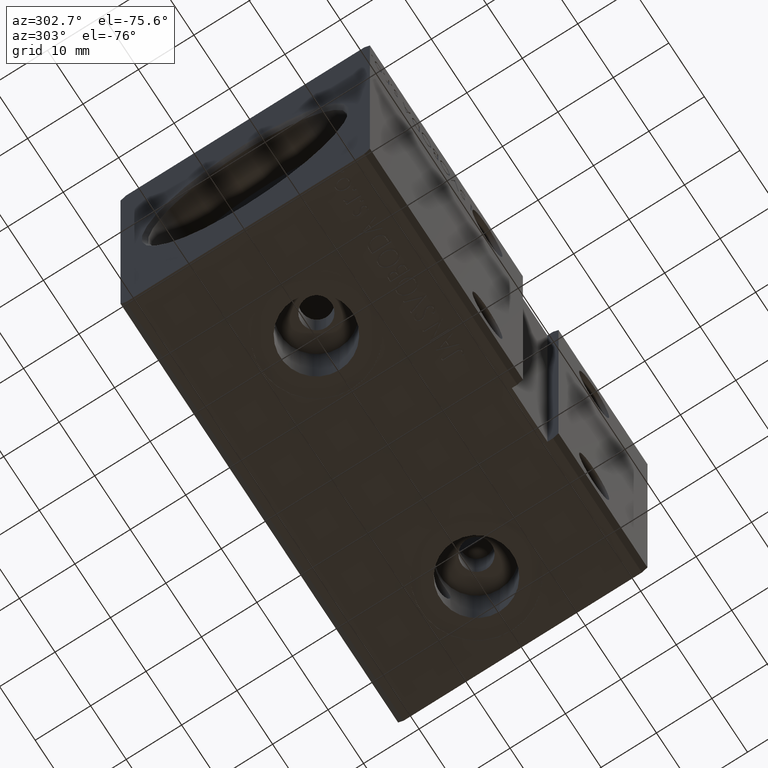
[diagram: clean part render]
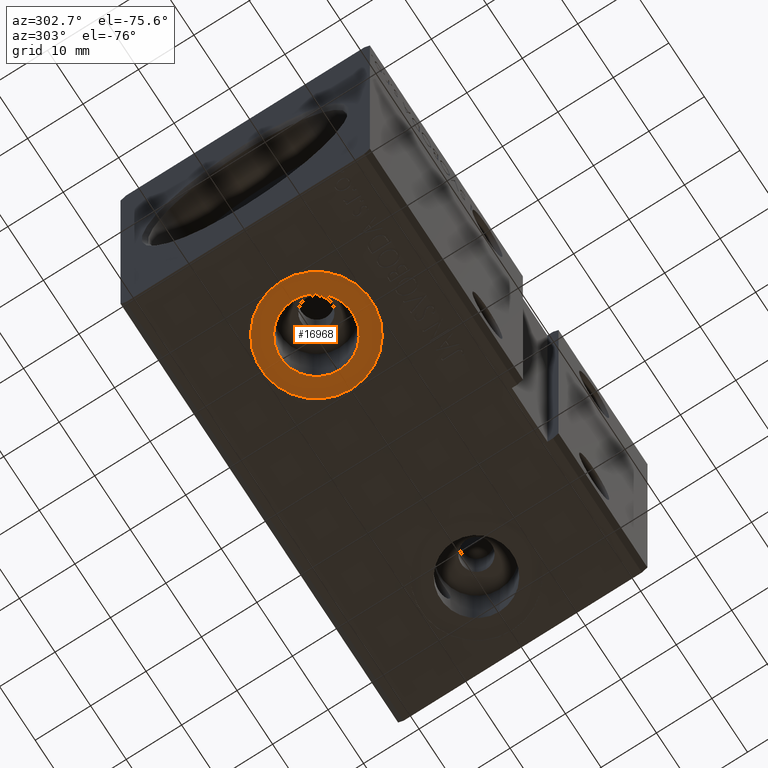
[diagram: same view with one face highlighted and labeled with its STEP entity id]
A machine part, auxiliary view. The second image highlights one B-rep face of the part: STEP entity #16968.
In plain terms, the highlighted planar face has unit normal (0, 0, -1).
Its self-contained STEP definition (entity closure, byte-faithful):
#3122 = FACE_BOUND ( 'NONE', #32667, .T. ) ;
#3220 = EDGE_CURVE ( 'NONE', #39566, #36517, #29716, .T. ) ;
#4224 = DIRECTION ( 'NONE',  ( -1.000000000000000000, 0.000000000000000000, 0.000000000000000000 ) ) ;
#5014 = DIRECTION ( 'NONE',  ( -1.000000000000000000, 0.000000000000000000, -0.000000000000000000 ) ) ;
#8058 = VERTEX_POINT ( 'NONE', #19276 ) ;
#8661 = CARTESIAN_POINT ( 'NONE',  ( 19.99999999999999645, 2.578758962896938545E-15, -32.39999999999999858 ) ) ;
#9212 = CIRCLE ( 'NONE', #33328, 10.00000000000000000 ) ;
#9384 = CARTESIAN_POINT ( 'NONE',  ( 26.49999999999999645, 3.374779382342717797E-15, -32.39999999999999858 ) ) ;
#9430 = CARTESIAN_POINT ( 'NONE',  ( 0.000000000000000000, 0.000000000000000000, -32.39999999999999858 ) ) ;
#10111 = DIRECTION ( 'NONE',  ( -1.000000000000000000, 0.000000000000000000, 0.000000000000000000 ) ) ;
#10787 = AXIS2_PLACEMENT_3D ( 'NONE', #27258, #39501, #14177 ) ;
#10942 = DIRECTION ( 'NONE',  ( 0.000000000000000000, 0.000000000000000000, -1.000000000000000000 ) ) ;
#11521 = DIRECTION ( 'NONE',  ( -1.000000000000000000, 0.000000000000000000, 0.000000000000000000 ) ) ;
#13068 = EDGE_CURVE ( 'NONE', #8058, #15825, #37014, .T. ) ;
#13567 = CARTESIAN_POINT ( 'NONE',  ( 19.99999999999999645, 2.578758962896938545E-15, -32.39999999999999858 ) ) ;
#13998 = CARTESIAN_POINT ( 'NONE',  ( 19.99999999999999645, 2.578758962896938545E-15, -32.39999999999999858 ) ) ;
#14177 = DIRECTION ( 'NONE',  ( -1.000000000000000000, 0.000000000000000000, 0.000000000000000000 ) ) ;
#14542 = AXIS2_PLACEMENT_3D ( 'NONE', #13998, #10942, #4224 ) ;
#15825 = VERTEX_POINT ( 'NONE', #36446 ) ;
#16626 = DIRECTION ( 'NONE',  ( 0.000000000000000000, 0.000000000000000000, -1.000000000000000000 ) ) ;
#16968 = ADVANCED_FACE ( 'NONE', ( #3122, #22095 ), #21890, .T. ) ;
#19276 = CARTESIAN_POINT ( 'NONE',  ( 30.00000000000000000, 3.803405762044291999E-15, -32.39999999999999858 ) ) ;
#19962 = EDGE_LOOP ( 'NONE', ( #29725, #34208 ) ) ;
#20675 = AXIS2_PLACEMENT_3D ( 'NONE', #8661, #39493, #11521 ) ;
#20699 = ORIENTED_EDGE ( 'NONE', *, *, #3220, .F. ) ;
#21890 = PLANE ( 'NONE',  #31196 ) ;
#22095 = FACE_OUTER_BOUND ( 'NONE', #19962, .T. ) ;
#27258 = CARTESIAN_POINT ( 'NONE',  ( 19.99999999999999645, 2.578758962896938545E-15, -32.39999999999999858 ) ) ;
#28882 = CARTESIAN_POINT ( 'NONE',  ( 13.49999999999999822, 2.578758962896938545E-15, -32.39999999999999858 ) ) ;
#29716 = CIRCLE ( 'NONE', #10787, 6.499999999999999112 ) ;
#29725 = ORIENTED_EDGE ( 'NONE', *, *, #32472, .T. ) ;
#31196 = AXIS2_PLACEMENT_3D ( 'NONE', #9430, #39307, #5014 ) ;
#32472 = EDGE_CURVE ( 'NONE', #15825, #8058, #9212, .T. ) ;
#32667 = EDGE_LOOP ( 'NONE', ( #20699, #33710 ) ) ;
#33328 = AXIS2_PLACEMENT_3D ( 'NONE', #13567, #16626, #10111 ) ;
#33710 = ORIENTED_EDGE ( 'NONE', *, *, #38521, .F. ) ;
#34208 = ORIENTED_EDGE ( 'NONE', *, *, #13068, .T. ) ;
#34767 = CIRCLE ( 'NONE', #14542, 6.499999999999999112 ) ;
#36446 = CARTESIAN_POINT ( 'NONE',  ( 9.999999999999996447, 2.578758962896938545E-15, -32.39999999999999858 ) ) ;
#36517 = VERTEX_POINT ( 'NONE', #9384 ) ;
#37014 = CIRCLE ( 'NONE', #20675, 10.00000000000000000 ) ;
#38521 = EDGE_CURVE ( 'NONE', #36517, #39566, #34767, .T. ) ;
#39307 = DIRECTION ( 'NONE',  ( 0.000000000000000000, 0.000000000000000000, -1.000000000000000000 ) ) ;
#39493 = DIRECTION ( 'NONE',  ( 0.000000000000000000, 0.000000000000000000, -1.000000000000000000 ) ) ;
#39501 = DIRECTION ( 'NONE',  ( 0.000000000000000000, 0.000000000000000000, -1.000000000000000000 ) ) ;
#39566 = VERTEX_POINT ( 'NONE', #28882 ) ;